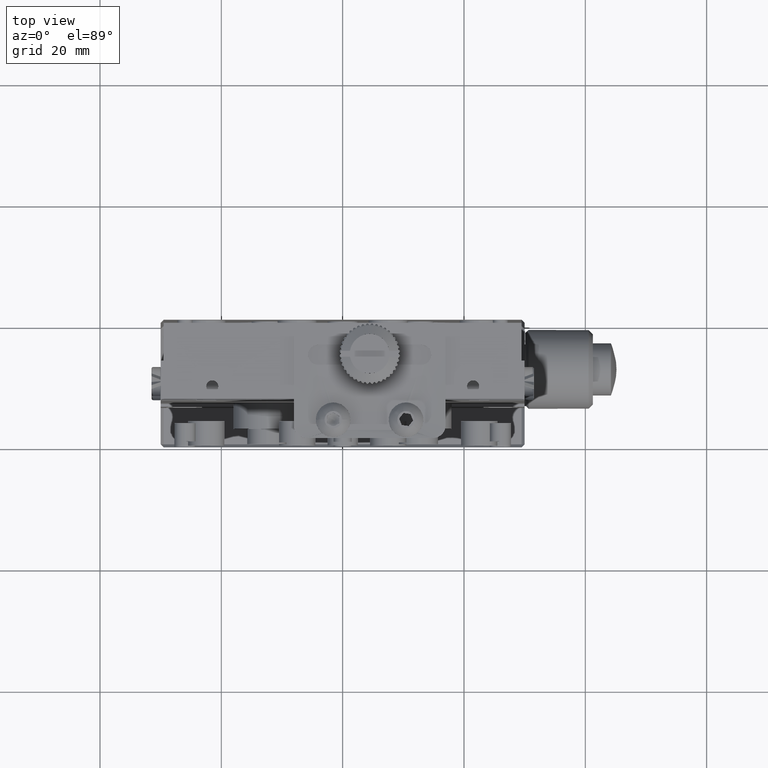
[diagram: clean part render]
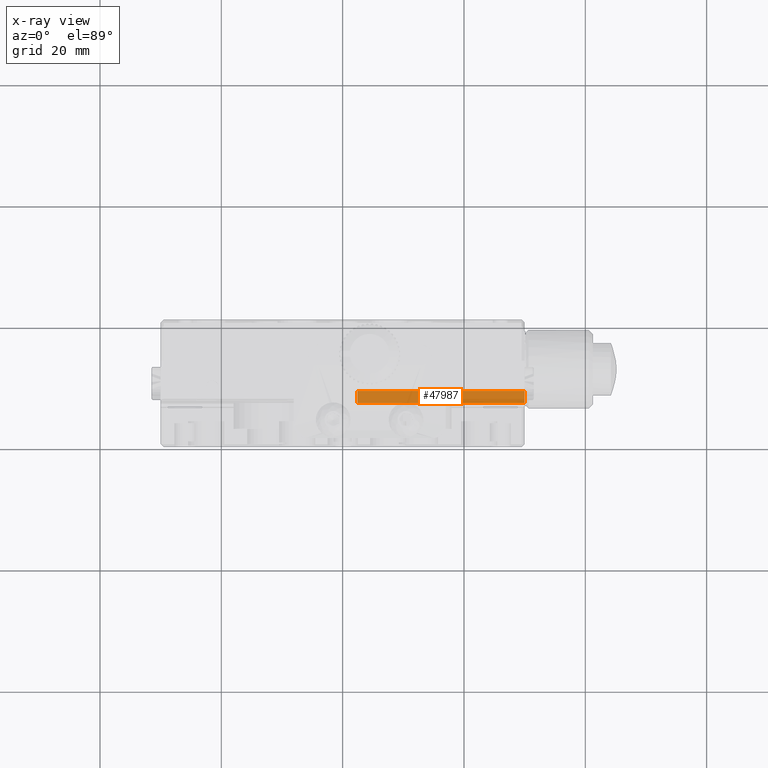
[diagram: x-ray — body ghosted, one internal face saturated and labeled with its STEP entity id]
A machine part, top view, then the same camera in x-ray: the body is ghosted and one INTERNAL B-rep face — a face not visible from any outside direction — is saturated and labeled: STEP entity #47987.
In plain terms, the highlighted planar face has unit normal (-0, 0, 1).
Its self-contained STEP definition (entity closure, byte-faithful):
#1624 = CARTESIAN_POINT ( 'NONE',  ( 30.00000000000000000, 8.999999999999998224, -13.00000000000000000 ) ) ;
#17734 = EDGE_CURVE ( 'NONE', #38417, #74269, #22146, .T. ) ;
#17781 = VECTOR ( 'NONE', #44491, 1000.000000000000000 ) ;
#18534 = FACE_OUTER_BOUND ( 'NONE', #21498, .T. ) ;
#20226 = PLANE ( 'NONE',  #41457 ) ;
#21498 = EDGE_LOOP ( 'NONE', ( #48312, #48240, #40618, #82762 ) ) ;
#21635 = CARTESIAN_POINT ( 'NONE',  ( 2.449489742783175217, 8.999999999999998224, -12.99999999999999467 ) ) ;
#22146 = LINE ( 'NONE', #49883, #35961 ) ;
#22856 = CARTESIAN_POINT ( 'NONE',  ( 30.00000000000000000, 6.999999999999995559, -12.99999999999999822 ) ) ;
#26315 = LINE ( 'NONE', #73620, #64252 ) ;
#26456 = EDGE_CURVE ( 'NONE', #40219, #35250, #77272, .T. ) ;
#28045 = EDGE_CURVE ( 'NONE', #35250, #38417, #26315, .T. ) ;
#29232 = CARTESIAN_POINT ( 'NONE',  ( 2.449489742783175217, 6.999999999999995559, -12.99999999999999645 ) ) ;
#34091 = DIRECTION ( 'NONE',  ( 0.000000000000000000, 1.000000000000000000, 0.000000000000000000 ) ) ;
#35155 = DIRECTION ( 'NONE',  ( 1.000000000000000000, 0.000000000000000000, 0.000000000000000000 ) ) ;
#35250 = VERTEX_POINT ( 'NONE', #29232 ) ;
#35961 = VECTOR ( 'NONE', #35155, 1000.000000000000000 ) ;
#38417 = VERTEX_POINT ( 'NONE', #21635 ) ;
#40219 = VERTEX_POINT ( 'NONE', #22856 ) ;
#40618 = ORIENTED_EDGE ( 'NONE', *, *, #28045, .F. ) ;
#41457 = AXIS2_PLACEMENT_3D ( 'NONE', #58014, #46672, #64539 ) ;
#44491 = DIRECTION ( 'NONE',  ( -0.000000000000000000, -1.000000000000000000, 0.000000000000000000 ) ) ;
#46672 = DIRECTION ( 'NONE',  ( -0.000000000000000000, 8.673617379884037444E-16, 1.000000000000000000 ) ) ;
#47987 = ADVANCED_FACE ( 'NONE', ( #18534 ), #20226, .T. ) ;
#48240 = ORIENTED_EDGE ( 'NONE', *, *, #17734, .F. ) ;
#48312 = ORIENTED_EDGE ( 'NONE', *, *, #52298, .F. ) ;
#49883 = CARTESIAN_POINT ( 'NONE',  ( 30.00000000000000000, 8.999999999999996447, -12.99999999999999645 ) ) ;
#52298 = EDGE_CURVE ( 'NONE', #74269, #40219, #83192, .T. ) ;
#57075 = CARTESIAN_POINT ( 'NONE',  ( 30.00000000000000000, 8.999999999999996447, -13.00000000000000533 ) ) ;
#58014 = CARTESIAN_POINT ( 'NONE',  ( 30.00000000000000000, 6.999999999999995559, -12.99999999999999822 ) ) ;
#63355 = DIRECTION ( 'NONE',  ( -1.000000000000000000, -0.000000000000000000, -0.000000000000000000 ) ) ;
#64252 = VECTOR ( 'NONE', #34091, 1000.000000000000000 ) ;
#64539 = DIRECTION ( 'NONE',  ( 0.000000000000000000, -1.000000000000000000, 8.673617379884037444E-16 ) ) ;
#68335 = VECTOR ( 'NONE', #63355, 1000.000000000000000 ) ;
#69871 = CARTESIAN_POINT ( 'NONE',  ( 30.00000000000000000, 6.999999999999995559, -12.99999999999999822 ) ) ;
#73620 = CARTESIAN_POINT ( 'NONE',  ( 2.449489742783175661, -2.673866729819931254E-16, -12.99999999999999467 ) ) ;
#74269 = VERTEX_POINT ( 'NONE', #1624 ) ;
#77272 = LINE ( 'NONE', #69871, #68335 ) ;
#82762 = ORIENTED_EDGE ( 'NONE', *, *, #26456, .F. ) ;
#83192 = LINE ( 'NONE', #57075, #17781 ) ;